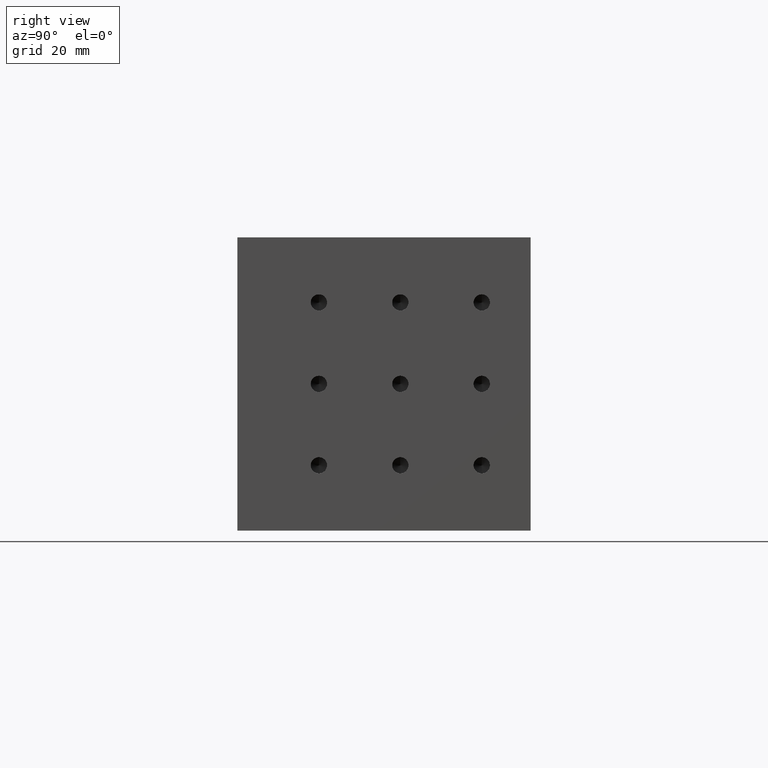
[diagram: clean part render]
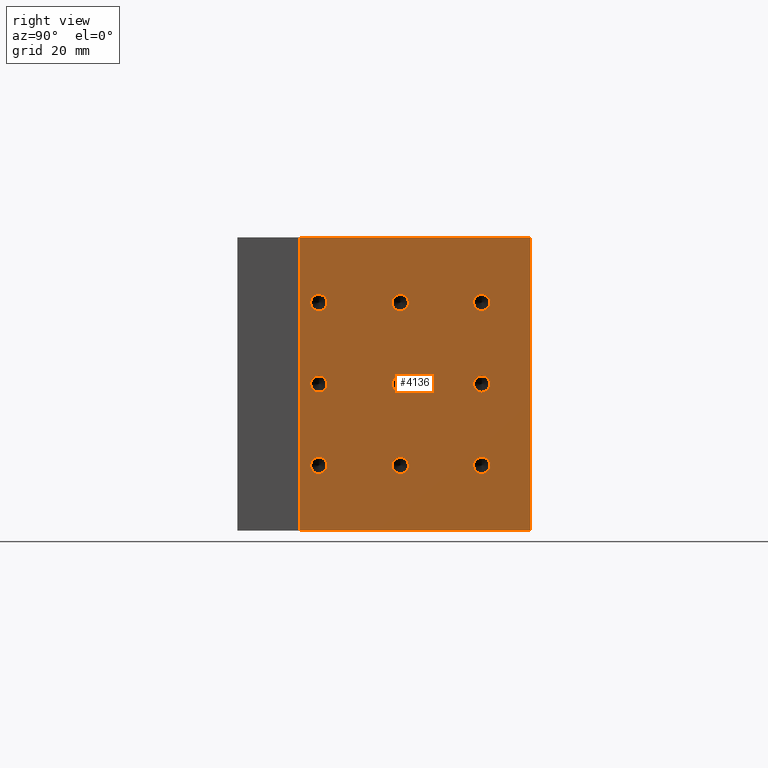
[diagram: same view with one face highlighted and labeled with its STEP entity id]
A machine part, right view. The second image highlights one B-rep face of the part: STEP entity #4136.
In plain terms, the highlighted planar face has unit normal (-1, 0, 0).
Its self-contained STEP definition (entity closure, byte-faithful):
#21 = EDGE_CURVE ( 'NONE', #73, #1101, #2405, .T. ) ;
#35 = FACE_BOUND ( 'NONE', #1684, .T. ) ;
#53 = EDGE_CURVE ( 'NONE', #2873, #5034, #1367, .T. ) ;
#73 = VERTEX_POINT ( 'NONE', #1564 ) ;
#164 = CIRCLE ( 'NONE', #1881, 2.500000000000002200 ) ;
#206 = CARTESIAN_POINT ( 'NONE',  ( 174.3969387244427200, 160.2146020396520500, 168.8158939252801900 ) ) ;
#219 = CARTESIAN_POINT ( 'NONE',  ( 174.3969387244427200, 104.2146020396520600, 188.8158939252802500 ) ) ;
#227 = CIRCLE ( 'NONE', #2498, 2.500000000000002200 ) ;
#238 = CARTESIAN_POINT ( 'NONE',  ( 174.3969387244427200, 175.2146020396520500, 98.81589392528026400 ) ) ;
#266 = DIRECTION ( 'NONE',  ( 1.000000000000000000, -0.0000000000000000000, -0.0000000000000000000 ) ) ;
#335 = CARTESIAN_POINT ( 'NONE',  ( 174.3969387244427200, 160.2146020396520500, 118.8158939252803600 ) ) ;
#397 = AXIS2_PLACEMENT_3D ( 'NONE', #3607, #266, #2742 ) ;
#410 = EDGE_LOOP ( 'NONE', ( #2042, #1945 ) ) ;
#419 = AXIS2_PLACEMENT_3D ( 'NONE', #5135, #4673, #4658 ) ;
#500 = ORIENTED_EDGE ( 'NONE', *, *, #644, .F. ) ;
#552 = AXIS2_PLACEMENT_3D ( 'NONE', #3801, #4660, #1793 ) ;
#565 = DIRECTION ( 'NONE',  ( 0.0000000000000000000, 0.0000000000000000000, -1.000000000000000000 ) ) ;
#612 = DIRECTION ( 'NONE',  ( 0.0000000000000000000, 0.0000000000000000000, -1.000000000000000000 ) ) ;
#614 = CARTESIAN_POINT ( 'NONE',  ( 174.3969387244427200, 110.2146020396520500, 171.3158939252801900 ) ) ;
#622 = VECTOR ( 'NONE', #3565, 1000.000000000000000 ) ;
#644 = EDGE_CURVE ( 'NONE', #2114, #4533, #4190, .T. ) ;
#647 = DIRECTION ( 'NONE',  ( 0.0000000000000000000, 0.0000000000000000000, -1.000000000000000000 ) ) ;
#652 = LINE ( 'NONE', #2702, #622 ) ;
#673 = EDGE_CURVE ( 'NONE', #4533, #2114, #4524, .T. ) ;
#681 = DIRECTION ( 'NONE',  ( -1.000000000000000000, 0.0000000000000000000, 0.0000000000000000000 ) ) ;
#709 = DIRECTION ( 'NONE',  ( 1.000000000000000000, -0.0000000000000000000, -0.0000000000000000000 ) ) ;
#750 = DIRECTION ( 'NONE',  ( 0.0000000000000000000, 0.0000000000000000000, -1.000000000000000000 ) ) ;
#761 = AXIS2_PLACEMENT_3D ( 'NONE', #5245, #709, #2376 ) ;
#845 = CARTESIAN_POINT ( 'NONE',  ( 174.3969387244427200, 110.2146020396520500, 118.8158939252803600 ) ) ;
#865 = VECTOR ( 'NONE', #4152, 1000.000000000000000 ) ;
#892 = VERTEX_POINT ( 'NONE', #4020 ) ;
#970 = CARTESIAN_POINT ( 'NONE',  ( 174.3969387244427200, 135.2146020396520500, 146.3158939252802800 ) ) ;
#989 = ORIENTED_EDGE ( 'NONE', *, *, #2206, .F. ) ;
#1003 = ORIENTED_EDGE ( 'NONE', *, *, #673, .F. ) ;
#1008 = FACE_BOUND ( 'NONE', #5144, .T. ) ;
#1035 = DIRECTION ( 'NONE',  ( 0.0000000000000000000, 0.0000000000000000000, -1.000000000000000000 ) ) ;
#1046 = CARTESIAN_POINT ( 'NONE',  ( 174.3969387244427200, 110.2146020396520500, 168.8158939252801900 ) ) ;
#1077 = DIRECTION ( 'NONE',  ( -0.0000000000000000000, -1.000000000000000000, -0.0000000000000000000 ) ) ;
#1078 = FACE_BOUND ( 'NONE', #4641, .T. ) ;
#1101 = VERTEX_POINT ( 'NONE', #2194 ) ;
#1107 = CARTESIAN_POINT ( 'NONE',  ( 174.3969387244427200, 110.2146020396520500, 121.3158939252803600 ) ) ;
#1133 = EDGE_CURVE ( 'NONE', #3402, #3838, #3732, .T. ) ;
#1148 = FACE_BOUND ( 'NONE', #3410, .T. ) ;
#1233 = VERTEX_POINT ( 'NONE', #219 ) ;
#1260 = EDGE_CURVE ( 'NONE', #3838, #3593, #2383, .T. ) ;
#1267 = FACE_BOUND ( 'NONE', #2853, .T. ) ;
#1277 = CARTESIAN_POINT ( 'NONE',  ( 174.3969387244427200, 175.2146020396520500, 188.8158939252802500 ) ) ;
#1367 = CIRCLE ( 'NONE', #761, 2.500000000000002200 ) ;
#1459 = CARTESIAN_POINT ( 'NONE',  ( 174.3969387244427200, 135.2146020396520500, 118.8158939252802800 ) ) ;
#1493 = AXIS2_PLACEMENT_3D ( 'NONE', #4741, #3870, #3530 ) ;
#1516 = ORIENTED_EDGE ( 'NONE', *, *, #4002, .T. ) ;
#1545 = AXIS2_PLACEMENT_3D ( 'NONE', #335, #2436, #3752 ) ;
#1549 = DIRECTION ( 'NONE',  ( 1.000000000000000000, -0.0000000000000000000, -0.0000000000000000000 ) ) ;
#1564 = CARTESIAN_POINT ( 'NONE',  ( 174.3969387244427200, 135.2146020396520500, 166.3158939252802500 ) ) ;
#1568 = DIRECTION ( 'NONE',  ( 1.000000000000000000, -0.0000000000000000000, -0.0000000000000000000 ) ) ;
#1573 = AXIS2_PLACEMENT_3D ( 'NONE', #3621, #681, #2775 ) ;
#1632 = CARTESIAN_POINT ( 'NONE',  ( 174.3969387244427200, 135.2146020396520500, 168.8158939252802500 ) ) ;
#1635 = AXIS2_PLACEMENT_3D ( 'NONE', #5175, #3101, #1035 ) ;
#1666 = VECTOR ( 'NONE', #3445, 1000.000000000000000 ) ;
#1669 = VERTEX_POINT ( 'NONE', #5062 ) ;
#1684 = EDGE_LOOP ( 'NONE', ( #5006, #4226 ) ) ;
#1724 = VERTEX_POINT ( 'NONE', #614 ) ;
#1740 = CARTESIAN_POINT ( 'NONE',  ( 174.3969387244427200, 135.2146020396520500, 141.3158939252802800 ) ) ;
#1748 = AXIS2_PLACEMENT_3D ( 'NONE', #4165, #4480, #2379 ) ;
#1750 = EDGE_CURVE ( 'NONE', #1669, #2822, #3071, .T. ) ;
#1786 = CARTESIAN_POINT ( 'NONE',  ( 174.3969387244427200, 175.2146020396520500, 98.81589392528026400 ) ) ;
#1789 = ORIENTED_EDGE ( 'NONE', *, *, #5097, .F. ) ;
#1793 = DIRECTION ( 'NONE',  ( 0.0000000000000000000, 0.0000000000000000000, -1.000000000000000000 ) ) ;
#1881 = AXIS2_PLACEMENT_3D ( 'NONE', #845, #2459, #2084 ) ;
#1885 = VERTEX_POINT ( 'NONE', #2778 ) ;
#1939 = VERTEX_POINT ( 'NONE', #1107 ) ;
#1945 = ORIENTED_EDGE ( 'NONE', *, *, #4073, .F. ) ;
#1975 = ORIENTED_EDGE ( 'NONE', *, *, #53, .F. ) ;
#2027 = CIRCLE ( 'NONE', #2065, 2.500000000000002200 ) ;
#2042 = ORIENTED_EDGE ( 'NONE', *, *, #3897, .F. ) ;
#2054 = CIRCLE ( 'NONE', #1545, 2.500000000000002200 ) ;
#2065 = AXIS2_PLACEMENT_3D ( 'NONE', #1459, #4346, #2352 ) ;
#2077 = CARTESIAN_POINT ( 'NONE',  ( 174.3969387244427200, 160.2146020396520500, 166.3158939252801600 ) ) ;
#2081 = EDGE_LOOP ( 'NONE', ( #4694, #5382 ) ) ;
#2084 = DIRECTION ( 'NONE',  ( 0.0000000000000000000, 0.0000000000000000000, -1.000000000000000000 ) ) ;
#2102 = EDGE_CURVE ( 'NONE', #3402, #1233, #4821, .T. ) ;
#2114 = VERTEX_POINT ( 'NONE', #1740 ) ;
#2193 = AXIS2_PLACEMENT_3D ( 'NONE', #3857, #4667, #4746 ) ;
#2194 = CARTESIAN_POINT ( 'NONE',  ( 174.3969387244427200, 135.2146020396520500, 171.3158939252802800 ) ) ;
#2200 = CARTESIAN_POINT ( 'NONE',  ( 174.3969387244427200, 135.2146020396520500, 121.3158939252802800 ) ) ;
#2206 = EDGE_CURVE ( 'NONE', #3747, #1885, #4619, .T. ) ;
#2210 = CIRCLE ( 'NONE', #419, 2.500000000000002200 ) ;
#2231 = ORIENTED_EDGE ( 'NONE', *, *, #3155, .F. ) ;
#2297 = CIRCLE ( 'NONE', #1748, 2.500000000000002200 ) ;
#2303 = FACE_OUTER_BOUND ( 'NONE', #4676, .T. ) ;
#2313 = AXIS2_PLACEMENT_3D ( 'NONE', #1632, #3381, #4148 ) ;
#2352 = DIRECTION ( 'NONE',  ( 0.0000000000000000000, 0.0000000000000000000, -1.000000000000000000 ) ) ;
#2356 = CARTESIAN_POINT ( 'NONE',  ( 174.3969387244427200, 135.2146020396520500, 118.8158939252802800 ) ) ;
#2358 = CIRCLE ( 'NONE', #3318, 2.500000000000002200 ) ;
#2376 = DIRECTION ( 'NONE',  ( 0.0000000000000000000, 0.0000000000000000000, -1.000000000000000000 ) ) ;
#2379 = DIRECTION ( 'NONE',  ( 0.0000000000000000000, 0.0000000000000000000, -1.000000000000000000 ) ) ;
#2383 = LINE ( 'NONE', #238, #5383 ) ;
#2405 = CIRCLE ( 'NONE', #2313, 2.500000000000002200 ) ;
#2436 = DIRECTION ( 'NONE',  ( 1.000000000000000000, -0.0000000000000000000, -0.0000000000000000000 ) ) ;
#2459 = DIRECTION ( 'NONE',  ( 1.000000000000000000, -0.0000000000000000000, -0.0000000000000000000 ) ) ;
#2485 = VERTEX_POINT ( 'NONE', #2077 ) ;
#2498 = AXIS2_PLACEMENT_3D ( 'NONE', #206, #4809, #612 ) ;
#2539 = VERTEX_POINT ( 'NONE', #2200 ) ;
#2557 = FACE_BOUND ( 'NONE', #3276, .T. ) ;
#2643 = EDGE_CURVE ( 'NONE', #1724, #2730, #4030, .T. ) ;
#2687 = CARTESIAN_POINT ( 'NONE',  ( 174.3969387244427200, 110.2146020396520500, 166.3158939252801600 ) ) ;
#2702 = CARTESIAN_POINT ( 'NONE',  ( 174.3969387244427200, 104.2146020396520600, 98.81589392528026400 ) ) ;
#2720 = DIRECTION ( 'NONE',  ( 1.000000000000000000, -0.0000000000000000000, -0.0000000000000000000 ) ) ;
#2730 = VERTEX_POINT ( 'NONE', #2687 ) ;
#2732 = CARTESIAN_POINT ( 'NONE',  ( 174.3969387244427200, 135.2146020396520500, 143.8158939252802800 ) ) ;
#2733 = AXIS2_PLACEMENT_3D ( 'NONE', #4697, #4717, #565 ) ;
#2742 = DIRECTION ( 'NONE',  ( 0.0000000000000000000, 0.0000000000000000000, -1.000000000000000000 ) ) ;
#2767 = CARTESIAN_POINT ( 'NONE',  ( 174.3969387244427200, 110.2146020396520500, 116.3158939252803500 ) ) ;
#2768 = AXIS2_PLACEMENT_3D ( 'NONE', #1046, #2720, #647 ) ;
#2769 = DIRECTION ( 'NONE',  ( 0.0000000000000000000, 0.0000000000000000000, -1.000000000000000000 ) ) ;
#2775 = DIRECTION ( 'NONE',  ( 0.0000000000000000000, 0.0000000000000000000, 1.000000000000000000 ) ) ;
#2778 = CARTESIAN_POINT ( 'NONE',  ( 174.3969387244427200, 160.2146020396520500, 146.3158939252803600 ) ) ;
#2788 = CIRCLE ( 'NONE', #2733, 2.500000000000002200 ) ;
#2822 = VERTEX_POINT ( 'NONE', #3990 ) ;
#2834 = CARTESIAN_POINT ( 'NONE',  ( 174.3969387244427200, 160.2146020396520500, 168.8158939252801900 ) ) ;
#2853 = EDGE_LOOP ( 'NONE', ( #989, #1789 ) ) ;
#2873 = VERTEX_POINT ( 'NONE', #4875 ) ;
#2965 = ORIENTED_EDGE ( 'NONE', *, *, #2102, .T. ) ;
#3071 = CIRCLE ( 'NONE', #1493, 2.500000000000002200 ) ;
#3075 = ORIENTED_EDGE ( 'NONE', *, *, #1750, .F. ) ;
#3101 = DIRECTION ( 'NONE',  ( 1.000000000000000000, -0.0000000000000000000, -0.0000000000000000000 ) ) ;
#3155 = EDGE_CURVE ( 'NONE', #5034, #2873, #2788, .T. ) ;
#3180 = EDGE_CURVE ( 'NONE', #3848, #1939, #2210, .T. ) ;
#3276 = EDGE_LOOP ( 'NONE', ( #4795, #4537 ) ) ;
#3318 = AXIS2_PLACEMENT_3D ( 'NONE', #2356, #1568, #2769 ) ;
#3381 = DIRECTION ( 'NONE',  ( 1.000000000000000000, -0.0000000000000000000, -0.0000000000000000000 ) ) ;
#3402 = VERTEX_POINT ( 'NONE', #3901 ) ;
#3410 = EDGE_LOOP ( 'NONE', ( #500, #1003 ) ) ;
#3445 = DIRECTION ( 'NONE',  ( -0.0000000000000000000, -0.0000000000000000000, -1.000000000000000000 ) ) ;
#3530 = DIRECTION ( 'NONE',  ( 0.0000000000000000000, 0.0000000000000000000, -1.000000000000000000 ) ) ;
#3535 = CARTESIAN_POINT ( 'NONE',  ( 174.3969387244427200, 175.2146020396520500, 98.81589392528026400 ) ) ;
#3544 = DIRECTION ( 'NONE',  ( 0.0000000000000000000, 0.0000000000000000000, -1.000000000000000000 ) ) ;
#3565 = DIRECTION ( 'NONE',  ( -0.0000000000000000000, -0.0000000000000000000, -1.000000000000000000 ) ) ;
#3593 = VERTEX_POINT ( 'NONE', #4066 ) ;
#3607 = CARTESIAN_POINT ( 'NONE',  ( 174.3969387244427200, 110.2146020396520500, 168.8158939252801900 ) ) ;
#3608 = VERTEX_POINT ( 'NONE', #4508 ) ;
#3621 = CARTESIAN_POINT ( 'NONE',  ( 174.3969387244427200, 175.2146020396520500, 98.81589392528026400 ) ) ;
#3662 = CARTESIAN_POINT ( 'NONE',  ( 174.3969387244427200, 160.2146020396520500, 141.3158939252803600 ) ) ;
#3720 = AXIS2_PLACEMENT_3D ( 'NONE', #2834, #1549, #750 ) ;
#3732 = LINE ( 'NONE', #1786, #1666 ) ;
#3747 = VERTEX_POINT ( 'NONE', #3662 ) ;
#3749 = EDGE_CURVE ( 'NONE', #3608, #2539, #2027, .T. ) ;
#3752 = DIRECTION ( 'NONE',  ( 0.0000000000000000000, 0.0000000000000000000, -1.000000000000000000 ) ) ;
#3800 = FACE_BOUND ( 'NONE', #4577, .T. ) ;
#3801 = CARTESIAN_POINT ( 'NONE',  ( 174.3969387244427200, 160.2146020396520500, 143.8158939252803600 ) ) ;
#3838 = VERTEX_POINT ( 'NONE', #3535 ) ;
#3848 = VERTEX_POINT ( 'NONE', #2767 ) ;
#3857 = CARTESIAN_POINT ( 'NONE',  ( 174.3969387244427200, 160.2146020396520500, 143.8158939252803600 ) ) ;
#3870 = DIRECTION ( 'NONE',  ( 1.000000000000000000, -0.0000000000000000000, -0.0000000000000000000 ) ) ;
#3897 = EDGE_CURVE ( 'NONE', #2485, #892, #4276, .T. ) ;
#3901 = CARTESIAN_POINT ( 'NONE',  ( 174.3969387244427200, 175.2146020396520500, 188.8158939252802500 ) ) ;
#3938 = ORIENTED_EDGE ( 'NONE', *, *, #2643, .F. ) ;
#3990 = CARTESIAN_POINT ( 'NONE',  ( 174.3969387244427200, 160.2146020396520500, 121.3158939252803600 ) ) ;
#4002 = EDGE_CURVE ( 'NONE', #1233, #3593, #652, .T. ) ;
#4020 = CARTESIAN_POINT ( 'NONE',  ( 174.3969387244427200, 160.2146020396520500, 171.3158939252801900 ) ) ;
#4030 = CIRCLE ( 'NONE', #2768, 2.500000000000002200 ) ;
#4066 = CARTESIAN_POINT ( 'NONE',  ( 174.3969387244427200, 104.2146020396520600, 98.81589392528026400 ) ) ;
#4073 = EDGE_CURVE ( 'NONE', #892, #2485, #227, .T. ) ;
#4136 = ADVANCED_FACE ( 'NONE', ( #1148, #4371, #35, #4311, #1267, #3800, #2557, #1008, #1078, #2303 ), #5249, .F. ) ;
#4148 = DIRECTION ( 'NONE',  ( 0.0000000000000000000, 0.0000000000000000000, -1.000000000000000000 ) ) ;
#4152 = DIRECTION ( 'NONE',  ( -0.0000000000000000000, -1.000000000000000000, -0.0000000000000000000 ) ) ;
#4165 = CARTESIAN_POINT ( 'NONE',  ( 174.3969387244427200, 135.2146020396520500, 168.8158939252802500 ) ) ;
#4190 = CIRCLE ( 'NONE', #1635, 2.500000000000002200 ) ;
#4226 = ORIENTED_EDGE ( 'NONE', *, *, #4798, .F. ) ;
#4274 = EDGE_CURVE ( 'NONE', #1939, #3848, #164, .T. ) ;
#4276 = CIRCLE ( 'NONE', #3720, 2.500000000000002200 ) ;
#4305 = ORIENTED_EDGE ( 'NONE', *, *, #5327, .F. ) ;
#4311 = FACE_BOUND ( 'NONE', #2081, .T. ) ;
#4346 = DIRECTION ( 'NONE',  ( 1.000000000000000000, -0.0000000000000000000, -0.0000000000000000000 ) ) ;
#4368 = DIRECTION ( 'NONE',  ( 1.000000000000000000, -0.0000000000000000000, -0.0000000000000000000 ) ) ;
#4371 = FACE_BOUND ( 'NONE', #410, .T. ) ;
#4480 = DIRECTION ( 'NONE',  ( 1.000000000000000000, -0.0000000000000000000, -0.0000000000000000000 ) ) ;
#4508 = CARTESIAN_POINT ( 'NONE',  ( 174.3969387244427200, 135.2146020396520500, 116.3158939252802800 ) ) ;
#4524 = CIRCLE ( 'NONE', #4609, 2.500000000000002200 ) ;
#4533 = VERTEX_POINT ( 'NONE', #970 ) ;
#4537 = ORIENTED_EDGE ( 'NONE', *, *, #4274, .F. ) ;
#4556 = ORIENTED_EDGE ( 'NONE', *, *, #4854, .F. ) ;
#4577 = EDGE_LOOP ( 'NONE', ( #3075, #4556 ) ) ;
#4609 = AXIS2_PLACEMENT_3D ( 'NONE', #2732, #4368, #3544 ) ;
#4619 = CIRCLE ( 'NONE', #552, 2.500000000000002200 ) ;
#4629 = CIRCLE ( 'NONE', #397, 2.500000000000002200 ) ;
#4641 = EDGE_LOOP ( 'NONE', ( #4305, #3938 ) ) ;
#4658 = DIRECTION ( 'NONE',  ( 0.0000000000000000000, 0.0000000000000000000, -1.000000000000000000 ) ) ;
#4660 = DIRECTION ( 'NONE',  ( 1.000000000000000000, -0.0000000000000000000, -0.0000000000000000000 ) ) ;
#4667 = DIRECTION ( 'NONE',  ( 1.000000000000000000, -0.0000000000000000000, -0.0000000000000000000 ) ) ;
#4673 = DIRECTION ( 'NONE',  ( 1.000000000000000000, -0.0000000000000000000, -0.0000000000000000000 ) ) ;
#4676 = EDGE_LOOP ( 'NONE', ( #1516, #4884, #5376, #2965 ) ) ;
#4694 = ORIENTED_EDGE ( 'NONE', *, *, #3749, .F. ) ;
#4697 = CARTESIAN_POINT ( 'NONE',  ( 174.3969387244427200, 110.2146020396520500, 143.8158939252803600 ) ) ;
#4717 = DIRECTION ( 'NONE',  ( 1.000000000000000000, -0.0000000000000000000, -0.0000000000000000000 ) ) ;
#4733 = EDGE_CURVE ( 'NONE', #2539, #3608, #2358, .T. ) ;
#4741 = CARTESIAN_POINT ( 'NONE',  ( 174.3969387244427200, 160.2146020396520500, 118.8158939252803600 ) ) ;
#4746 = DIRECTION ( 'NONE',  ( 0.0000000000000000000, 0.0000000000000000000, -1.000000000000000000 ) ) ;
#4795 = ORIENTED_EDGE ( 'NONE', *, *, #3180, .F. ) ;
#4798 = EDGE_CURVE ( 'NONE', #1101, #73, #2297, .T. ) ;
#4809 = DIRECTION ( 'NONE',  ( 1.000000000000000000, -0.0000000000000000000, -0.0000000000000000000 ) ) ;
#4821 = LINE ( 'NONE', #1277, #865 ) ;
#4854 = EDGE_CURVE ( 'NONE', #2822, #1669, #2054, .T. ) ;
#4875 = CARTESIAN_POINT ( 'NONE',  ( 174.3969387244427200, 110.2146020396520500, 141.3158939252803600 ) ) ;
#4884 = ORIENTED_EDGE ( 'NONE', *, *, #1260, .F. ) ;
#4965 = CIRCLE ( 'NONE', #2193, 2.500000000000002200 ) ;
#5006 = ORIENTED_EDGE ( 'NONE', *, *, #21, .F. ) ;
#5034 = VERTEX_POINT ( 'NONE', #5053 ) ;
#5053 = CARTESIAN_POINT ( 'NONE',  ( 174.3969387244427200, 110.2146020396520500, 146.3158939252803600 ) ) ;
#5062 = CARTESIAN_POINT ( 'NONE',  ( 174.3969387244427200, 160.2146020396520500, 116.3158939252803500 ) ) ;
#5097 = EDGE_CURVE ( 'NONE', #1885, #3747, #4965, .T. ) ;
#5135 = CARTESIAN_POINT ( 'NONE',  ( 174.3969387244427200, 110.2146020396520500, 118.8158939252803600 ) ) ;
#5144 = EDGE_LOOP ( 'NONE', ( #1975, #2231 ) ) ;
#5175 = CARTESIAN_POINT ( 'NONE',  ( 174.3969387244427200, 135.2146020396520500, 143.8158939252802800 ) ) ;
#5245 = CARTESIAN_POINT ( 'NONE',  ( 174.3969387244427200, 110.2146020396520500, 143.8158939252803600 ) ) ;
#5249 = PLANE ( 'NONE',  #1573 ) ;
#5327 = EDGE_CURVE ( 'NONE', #2730, #1724, #4629, .T. ) ;
#5376 = ORIENTED_EDGE ( 'NONE', *, *, #1133, .F. ) ;
#5382 = ORIENTED_EDGE ( 'NONE', *, *, #4733, .F. ) ;
#5383 = VECTOR ( 'NONE', #1077, 1000.000000000000000 ) ;